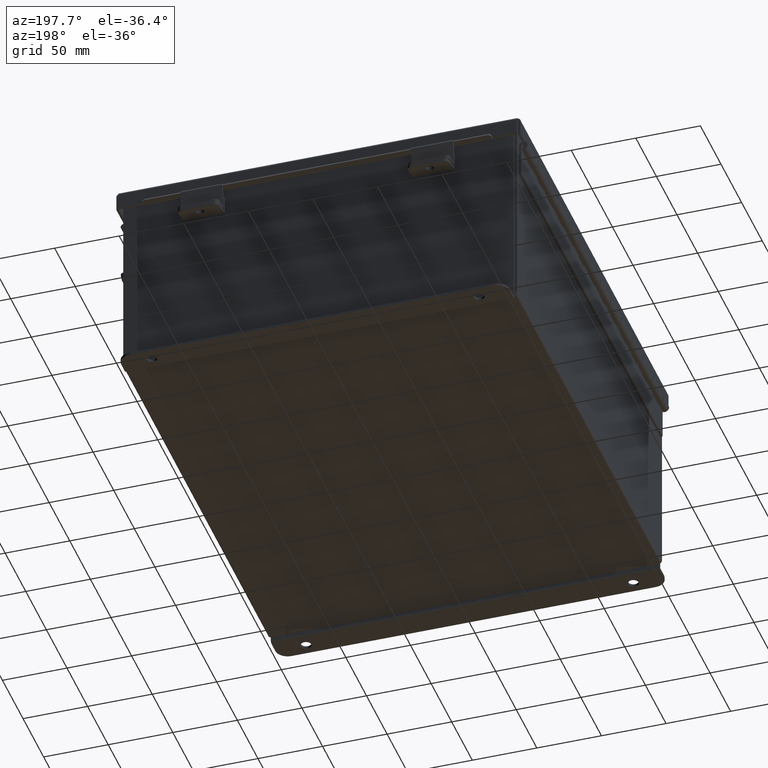
[diagram: clean part render]
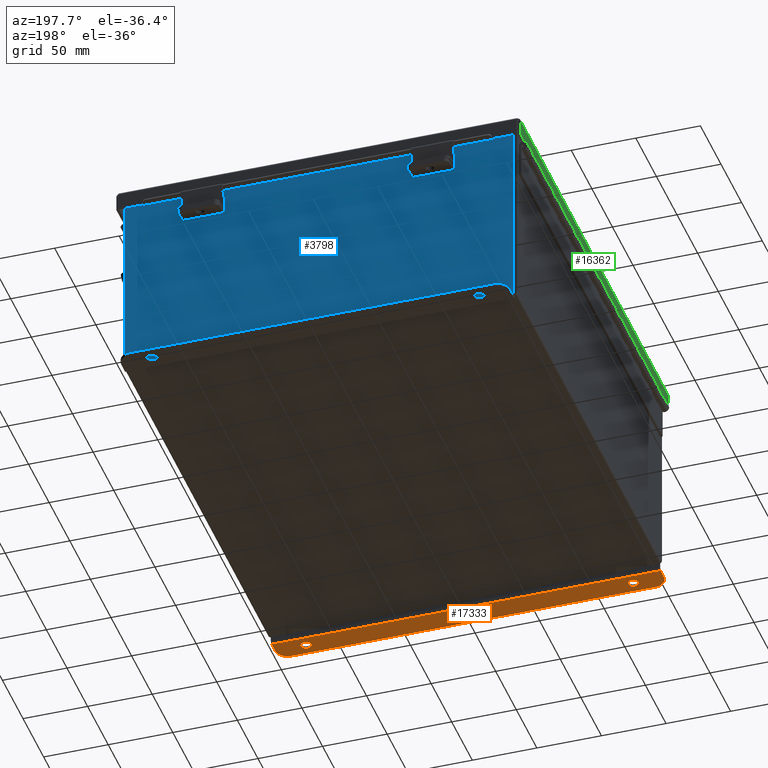
[diagram: same view with three faces highlighted in distinct colors, each labeled with its STEP entity id]
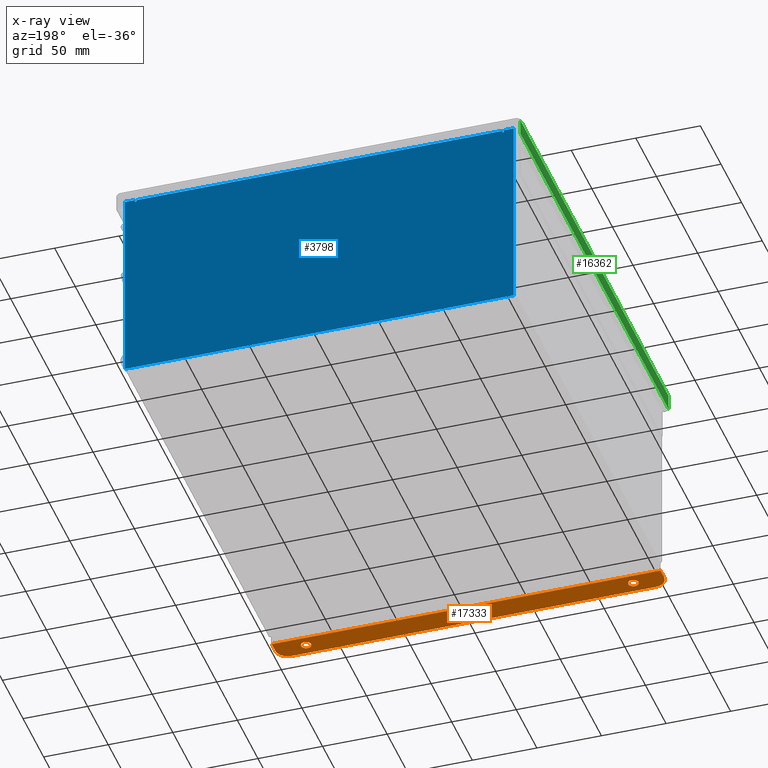
[diagram: x-ray of the same camera — body ghosted, the three highlighted faces saturated]
A machine part, auxiliary view with three faces highlighted in distinct colors.
The next image is the same camera in x-ray (body ghosted, the three faces saturated) — at least one of them is partly hidden behind the body in this view.
Their STEP definitions:

[orange] entity #17333 — the highlighted planar face has unit normal (0, -0, 1).
#193 = AXIS2_PLACEMENT_3D ( 'NONE', #13120, #4387, #14607 ) ;
#338 = AXIS2_PLACEMENT_3D ( 'NONE', #4331, #14545, #5784 ) ;
#808 = CARTESIAN_POINT ( 'NONE',  ( 5.550299999999999100, 0.7378000000000000100, -3.187000000000002900 ) ) ;
#871 = ORIENTED_EDGE ( 'NONE', *, *, #1375, .F. ) ;
#882 = LINE ( 'NONE', #15819, #7734 ) ;
#1101 = PLANE ( 'NONE',  #8274 ) ;
#1237 = VERTEX_POINT ( 'NONE', #14409 ) ;
#1257 = DIRECTION ( 'NONE',  ( -0.0000000000000000000, -3.702694488566362300E-015, -1.000000000000000000 ) ) ;
#1287 = VERTEX_POINT ( 'NONE', #11602 ) ;
#1375 = EDGE_CURVE ( 'NONE', #2573, #6247, #18643, .T. ) ;
#1559 = ORIENTED_EDGE ( 'NONE', *, *, #10273, .T. ) ;
#1796 = CARTESIAN_POINT ( 'NONE',  ( -4.987800000000000900, 0.3627999999999997300, -3.187000000000001200 ) ) ;
#1853 = VERTEX_POINT ( 'NONE', #808 ) ;
#2573 = VERTEX_POINT ( 'NONE', #12550 ) ;
#2581 = DIRECTION ( 'NONE',  ( -4.919856193148104900E-031, -1.000000000000000000, 3.702694488566362300E-015 ) ) ;
#2668 = VERTEX_POINT ( 'NONE', #4227 ) ;
#3035 = DIRECTION ( 'NONE',  ( 1.000000000000000000, 4.910036603141682400E-031, -0.0000000000000000000 ) ) ;
#3126 = CARTESIAN_POINT ( 'NONE',  ( 5.925299999999999100, 0.01300000000000010700, -3.187000000000004700 ) ) ;
#3251 = DIRECTION ( 'NONE',  ( 0.0000000000000000000, 1.000000000000000000, -3.502369222646487000E-015 ) ) ;
#3607 = CARTESIAN_POINT ( 'NONE',  ( 4.987799999999998200, 0.5187999999999999300, -3.187000000000001600 ) ) ;
#3808 = CIRCLE ( 'NONE', #13579, 0.1560000000000001900 ) ;
#4227 = CARTESIAN_POINT ( 'NONE',  ( -5.925300000000001800, 0.3627999999999920700, -3.187000000000005600 ) ) ;
#4250 = VERTEX_POINT ( 'NONE', #3607 ) ;
#4331 = CARTESIAN_POINT ( 'NONE',  ( 4.987799999999998200, 0.3627999999999997300, -3.187000000000001200 ) ) ;
#4387 = DIRECTION ( 'NONE',  ( -0.0000000000000000000, -3.702694488566362300E-015, -1.000000000000000000 ) ) ;
#5228 = ORIENTED_EDGE ( 'NONE', *, *, #7889, .F. ) ;
#5784 = DIRECTION ( 'NONE',  ( 0.0000000000000000000, 1.000000000000000000, -3.502369222646487000E-015 ) ) ;
#5937 = CIRCLE ( 'NONE', #16505, 0.1560000000000001900 ) ;
#5974 = CARTESIAN_POINT ( 'NONE',  ( 5.925299999999999100, 0.01300000000000120000, -3.187000000000004700 ) ) ;
#6247 = VERTEX_POINT ( 'NONE', #3126 ) ;
#6349 = CARTESIAN_POINT ( 'NONE',  ( -2.035385365534024800E-024, 0.7378000000000000100, -3.187000000000002900 ) ) ;
#6629 = DIRECTION ( 'NONE',  ( 0.0000000000000000000, -3.362274453740631800E-015, -1.000000000000000000 ) ) ;
#6952 = VECTOR ( 'NONE', #3035, 39.37007874015748100 ) ;
#7467 = FACE_BOUND ( 'NONE', #15431, .T. ) ;
#7504 = EDGE_CURVE ( 'NONE', #8632, #8294, #5937, .T. ) ;
#7538 = DIRECTION ( 'NONE',  ( 0.0000000000000000000, -3.362274453740631800E-015, -1.000000000000000000 ) ) ;
#7724 = DIRECTION ( 'NONE',  ( 4.919856193148104900E-031, 1.000000000000000000, -3.702694488566362300E-015 ) ) ;
#7734 = VECTOR ( 'NONE', #14352, 39.37007874015748100 ) ;
#7800 = DIRECTION ( 'NONE',  ( 1.000000000000000000, 4.910036603141682400E-031, 0.0000000000000000000 ) ) ;
#7889 = EDGE_CURVE ( 'NONE', #8294, #8632, #11634, .T. ) ;
#7930 = FACE_OUTER_BOUND ( 'NONE', #8169, .T. ) ;
#8169 = EDGE_LOOP ( 'NONE', ( #18694, #13023, #16628, #1559, #12194, #871 ) ) ;
#8274 = AXIS2_PLACEMENT_3D ( 'NONE', #14193, #11326, #2581 ) ;
#8294 = VERTEX_POINT ( 'NONE', #18668 ) ;
#8354 = EDGE_CURVE ( 'NONE', #1287, #6247, #882, .T. ) ;
#8433 = EDGE_CURVE ( 'NONE', #4250, #14114, #18042, .T. ) ;
#8632 = VERTEX_POINT ( 'NONE', #16459 ) ;
#8904 = AXIS2_PLACEMENT_3D ( 'NONE', #10000, #1257, #11473 ) ;
#9073 = EDGE_CURVE ( 'NONE', #2573, #2668, #18254, .T. ) ;
#9814 = EDGE_CURVE ( 'NONE', #14114, #4250, #3808, .T. ) ;
#10000 = CARTESIAN_POINT ( 'NONE',  ( 5.550299999999999100, 0.3628000000000008400, -3.187000000000005600 ) ) ;
#10100 = CARTESIAN_POINT ( 'NONE',  ( -5.925300000000001800, -1.966930555438269700E-014, -3.187000000000000300 ) ) ;
#10273 = EDGE_CURVE ( 'NONE', #1853, #1287, #15891, .T. ) ;
#10339 = LINE ( 'NONE', #6349, #17672 ) ;
#11326 = DIRECTION ( 'NONE',  ( 0.0000000000000000000, 3.702694488566362300E-015, 1.000000000000000000 ) ) ;
#11473 = DIRECTION ( 'NONE',  ( 0.0000000000000000000, -1.000000000000000000, 4.370956789862820400E-015 ) ) ;
#11602 = CARTESIAN_POINT ( 'NONE',  ( 5.925299999999999100, 0.3628000000000008400, -3.187000000000001200 ) ) ;
#11634 = CIRCLE ( 'NONE', #12823, 0.1560000000000001900 ) ;
#12005 = DIRECTION ( 'NONE',  ( 0.0000000000000000000, -3.362274453740631800E-015, -1.000000000000000000 ) ) ;
#12185 = EDGE_CURVE ( 'NONE', #1237, #1853, #10339, .T. ) ;
#12194 = ORIENTED_EDGE ( 'NONE', *, *, #8354, .T. ) ;
#12300 = ORIENTED_EDGE ( 'NONE', *, *, #7504, .F. ) ;
#12550 = CARTESIAN_POINT ( 'NONE',  ( -5.925300000000000000, 0.01299999999999245900, -3.187000000000000300 ) ) ;
#12823 = AXIS2_PLACEMENT_3D ( 'NONE', #1796, #12005, #3251 ) ;
#13023 = ORIENTED_EDGE ( 'NONE', *, *, #16679, .T. ) ;
#13120 = CARTESIAN_POINT ( 'NONE',  ( -5.550299999999999100, 0.3627999999999997300, -3.187000000000005600 ) ) ;
#13202 = CIRCLE ( 'NONE', #193, 0.3750000000000000600 ) ;
#13537 = EDGE_LOOP ( 'NONE', ( #14456, #15061 ) ) ;
#13579 = AXIS2_PLACEMENT_3D ( 'NONE', #15385, #6629, #16861 ) ;
#14114 = VERTEX_POINT ( 'NONE', #14243 ) ;
#14193 = CARTESIAN_POINT ( 'NONE',  ( 0.0000000000000000000, -1.092739197465705300E-014, -3.187000000000000700 ) ) ;
#14243 = CARTESIAN_POINT ( 'NONE',  ( 4.987800000000007100, 0.2067999999999996000, -3.187000000000000700 ) ) ;
#14332 = VECTOR ( 'NONE', #7724, 39.37007874015748100 ) ;
#14352 = DIRECTION ( 'NONE',  ( -4.919856193148104900E-031, -1.000000000000000000, 3.702694488566362300E-015 ) ) ;
#14409 = CARTESIAN_POINT ( 'NONE',  ( -5.550299999999999100, 0.7377999999999912400, -3.187000000000002900 ) ) ;
#14456 = ORIENTED_EDGE ( 'NONE', *, *, #8433, .F. ) ;
#14545 = DIRECTION ( 'NONE',  ( 0.0000000000000000000, -3.362274453740631800E-015, -1.000000000000000000 ) ) ;
#14607 = DIRECTION ( 'NONE',  ( 0.0000000000000000000, -1.000000000000000000, 4.370956789862820400E-015 ) ) ;
#15061 = ORIENTED_EDGE ( 'NONE', *, *, #9814, .F. ) ;
#15270 = FACE_BOUND ( 'NONE', #13537, .T. ) ;
#15385 = CARTESIAN_POINT ( 'NONE',  ( 4.987799999999998200, 0.3627999999999997300, -3.187000000000001200 ) ) ;
#15431 = EDGE_LOOP ( 'NONE', ( #12300, #5228 ) ) ;
#15819 = CARTESIAN_POINT ( 'NONE',  ( 5.925299999999999100, -1.092739197465705300E-014, -3.187000000000004700 ) ) ;
#15891 = CIRCLE ( 'NONE', #8904, 0.3750000000000000600 ) ;
#16301 = CARTESIAN_POINT ( 'NONE',  ( -4.987800000000000900, 0.3627999999999997300, -3.187000000000001200 ) ) ;
#16459 = CARTESIAN_POINT ( 'NONE',  ( -4.987800000000000900, 0.5187999999999999300, -3.187000000000001600 ) ) ;
#16505 = AXIS2_PLACEMENT_3D ( 'NONE', #16301, #7538, #17789 ) ;
#16628 = ORIENTED_EDGE ( 'NONE', *, *, #12185, .T. ) ;
#16679 = EDGE_CURVE ( 'NONE', #2668, #1237, #13202, .T. ) ;
#16861 = DIRECTION ( 'NONE',  ( 0.0000000000000000000, 1.000000000000000000, -3.502369222646487000E-015 ) ) ;
#17333 = ADVANCED_FACE ( 'NONE', ( #7467, #15270, #7930 ), #1101, .F. ) ;
#17672 = VECTOR ( 'NONE', #7800, 39.37007874015748100 ) ;
#17789 = DIRECTION ( 'NONE',  ( 0.0000000000000000000, 1.000000000000000000, -3.502369222646487000E-015 ) ) ;
#18042 = CIRCLE ( 'NONE', #338, 0.1560000000000001900 ) ;
#18254 = LINE ( 'NONE', #10100, #14332 ) ;
#18643 = LINE ( 'NONE', #5974, #6952 ) ;
#18668 = CARTESIAN_POINT ( 'NONE',  ( -4.987799999999992000, 0.2067999999999996000, -3.187000000000000700 ) ) ;
#18694 = ORIENTED_EDGE ( 'NONE', *, *, #9073, .T. ) ;

[blue] entity #3798 — the highlighted planar face has unit normal (0, -1, 0).
#420 = CARTESIAN_POINT ( 'NONE',  ( -5.619650000000000000, 0.0000000000000000000, 0.0000000000000000000 ) ) ;
#514 = AXIS2_PLACEMENT_3D ( 'NONE', #12495, #3744, #13946 ) ;
#763 = ORIENTED_EDGE ( 'NONE', *, *, #988, .T. ) ;
#988 = EDGE_CURVE ( 'NONE', #2553, #3763, #12464, .T. ) ;
#1054 = VERTEX_POINT ( 'NONE', #3764 ) ;
#1166 = DIRECTION ( 'NONE',  ( 0.0000000000000000000, -0.0000000000000000000, -1.000000000000000000 ) ) ;
#1413 = DIRECTION ( 'NONE',  ( 1.000000000000000000, 0.0000000000000000000, 0.0000000000000000000 ) ) ;
#1656 = DIRECTION ( 'NONE',  ( 1.000000000000000000, 0.0000000000000000000, 0.0000000000000000000 ) ) ;
#2333 = DIRECTION ( 'NONE',  ( 0.0000000000000000000, 0.0000000000000000000, -1.000000000000000000 ) ) ;
#2553 = VERTEX_POINT ( 'NONE', #5264 ) ;
#2660 = EDGE_LOOP ( 'NONE', ( #13603, #16737, #9439, #13214, #15163, #16209, #3087, #16712, #13418, #12981, #763, #12319 ) ) ;
#2873 = VERTEX_POINT ( 'NONE', #3406 ) ;
#3087 = ORIENTED_EDGE ( 'NONE', *, *, #10326, .F. ) ;
#3318 = VECTOR ( 'NONE', #4268, 39.37007874015748100 ) ;
#3406 = CARTESIAN_POINT ( 'NONE',  ( 5.619649999999998300, 0.0000000000000000000, 2.874949999999998300 ) ) ;
#3490 = DIRECTION ( 'NONE',  ( -0.0000000000000000000, 1.000000000000000000, -0.0000000000000000000 ) ) ;
#3616 = EDGE_CURVE ( 'NONE', #2873, #18536, #4394, .T. ) ;
#3744 = DIRECTION ( 'NONE',  ( -0.0000000000000000000, 1.000000000000000000, -0.0000000000000000000 ) ) ;
#3763 = VERTEX_POINT ( 'NONE', #15627 ) ;
#3764 = CARTESIAN_POINT ( 'NONE',  ( 5.925299999999999100, 0.0000000000000000000, 2.925299999999999600 ) ) ;
#3786 = LINE ( 'NONE', #8642, #3318 ) ;
#3798 = ADVANCED_FACE ( 'NONE', ( #12829 ), #8426, .F. ) ;
#3915 = VERTEX_POINT ( 'NONE', #13034 ) ;
#4109 = VECTOR ( 'NONE', #16816, 39.37007874015748100 ) ;
#4122 = CARTESIAN_POINT ( 'NONE',  ( -5.925300000000001800, 0.0000000000000000000, 2.925299999999999600 ) ) ;
#4258 = AXIS2_PLACEMENT_3D ( 'NONE', #12233, #3490, #13693 ) ;
#4268 = DIRECTION ( 'NONE',  ( -2.170286390199955400E-014, 0.0000000000000000000, -1.000000000000000000 ) ) ;
#4355 = LINE ( 'NONE', #18832, #15557 ) ;
#4394 = CIRCLE ( 'NONE', #514, 0.01867500000000003900 ) ;
#4685 = VECTOR ( 'NONE', #14338, 39.37007874015748100 ) ;
#4814 = CARTESIAN_POINT ( 'NONE',  ( 5.925299999999999100, 0.0000000000000000000, -3.099299999999999900 ) ) ;
#5051 = EDGE_CURVE ( 'NONE', #18536, #8036, #13478, .T. ) ;
#5098 = CARTESIAN_POINT ( 'NONE',  ( 5.582299999999999200, 0.0000000000000000000, 2.874949999999998300 ) ) ;
#5264 = CARTESIAN_POINT ( 'NONE',  ( -5.925300000000000000, 0.0000000000000000000, -3.099299999999999900 ) ) ;
#5713 = VECTOR ( 'NONE', #17337, 39.37007874015748100 ) ;
#5755 = CARTESIAN_POINT ( 'NONE',  ( -5.925300000000001800, 0.0000000000000000000, 2.925299999999999600 ) ) ;
#6256 = CARTESIAN_POINT ( 'NONE',  ( 5.619650000000000000, 0.0000000000000000000, 2.925299999999999600 ) ) ;
#6387 = CARTESIAN_POINT ( 'NONE',  ( 5.582299999999999200, 0.0000000000000000000, 2.912299999999999200 ) ) ;
#7077 = EDGE_CURVE ( 'NONE', #10798, #13394, #15785, .T. ) ;
#7125 = LINE ( 'NONE', #5755, #10563 ) ;
#7337 = EDGE_CURVE ( 'NONE', #2553, #11152, #4355, .T. ) ;
#7714 = VECTOR ( 'NONE', #2333, 39.37007874015748100 ) ;
#7894 = VECTOR ( 'NONE', #10662, 39.37007874015748100 ) ;
#8036 = VERTEX_POINT ( 'NONE', #6387 ) ;
#8426 = PLANE ( 'NONE',  #10314 ) ;
#8478 = CARTESIAN_POINT ( 'NONE',  ( 5.582299999999999200, 0.0000000000000000000, 0.0000000000000000000 ) ) ;
#8642 = CARTESIAN_POINT ( 'NONE',  ( 5.619649999999937000, 0.0000000000000000000, -1.218404205174261500E-013 ) ) ;
#8777 = LINE ( 'NONE', #11878, #16129 ) ;
#8845 = EDGE_CURVE ( 'NONE', #1054, #11152, #15044, .T. ) ;
#9076 = VERTEX_POINT ( 'NONE', #6256 ) ;
#9422 = EDGE_CURVE ( 'NONE', #3915, #8036, #18472, .T. ) ;
#9439 = ORIENTED_EDGE ( 'NONE', *, *, #15791, .F. ) ;
#9507 = CARTESIAN_POINT ( 'NONE',  ( -5.582300000000000000, 0.0000000000000000000, 0.0000000000000000000 ) ) ;
#9733 = VECTOR ( 'NONE', #17248, 39.37007874015748100 ) ;
#9905 = DIRECTION ( 'NONE',  ( 0.0000000000000000000, -1.000000000000000000, 0.0000000000000000000 ) ) ;
#10314 = AXIS2_PLACEMENT_3D ( 'NONE', #18711, #9905, #1166 ) ;
#10326 = EDGE_CURVE ( 'NONE', #9076, #2873, #3786, .T. ) ;
#10563 = VECTOR ( 'NONE', #1413, 39.37007874015748100 ) ;
#10662 = DIRECTION ( 'NONE',  ( 0.0000000000000000000, 0.0000000000000000000, 1.000000000000000000 ) ) ;
#10798 = VERTEX_POINT ( 'NONE', #17031 ) ;
#11152 = VERTEX_POINT ( 'NONE', #4814 ) ;
#11328 = LINE ( 'NONE', #420, #7894 ) ;
#11878 = CARTESIAN_POINT ( 'NONE',  ( -5.925300000000001800, 0.0000000000000000000, 2.925299999999999600 ) ) ;
#12233 = CARTESIAN_POINT ( 'NONE',  ( -5.600975000000000000, 0.0000000000000000000, 2.874949999999998300 ) ) ;
#12319 = ORIENTED_EDGE ( 'NONE', *, *, #18290, .T. ) ;
#12417 = EDGE_CURVE ( 'NONE', #9076, #1054, #7125, .T. ) ;
#12464 = LINE ( 'NONE', #4122, #4685 ) ;
#12495 = CARTESIAN_POINT ( 'NONE',  ( 5.600974999999998300, 0.0000000000000000000, 2.874949999999998300 ) ) ;
#12565 = CARTESIAN_POINT ( 'NONE',  ( 5.925299999999999100, 0.0000000000000000000, 2.925299999999999600 ) ) ;
#12829 = FACE_OUTER_BOUND ( 'NONE', #2660, .T. ) ;
#12973 = DIRECTION ( 'NONE',  ( 1.000000000000000000, -0.0000000000000000000, -0.0000000000000000000 ) ) ;
#12981 = ORIENTED_EDGE ( 'NONE', *, *, #7337, .F. ) ;
#13034 = CARTESIAN_POINT ( 'NONE',  ( -5.582300000000000000, 2.185478394931410600E-015, 2.912299999999999200 ) ) ;
#13214 = ORIENTED_EDGE ( 'NONE', *, *, #9422, .T. ) ;
#13394 = VERTEX_POINT ( 'NONE', #13800 ) ;
#13418 = ORIENTED_EDGE ( 'NONE', *, *, #8845, .T. ) ;
#13478 = LINE ( 'NONE', #8478, #5713 ) ;
#13603 = ORIENTED_EDGE ( 'NONE', *, *, #18391, .F. ) ;
#13693 = DIRECTION ( 'NONE',  ( 0.0000000000000000000, 0.0000000000000000000, -1.000000000000000000 ) ) ;
#13800 = CARTESIAN_POINT ( 'NONE',  ( -5.619650000000000000, 0.0000000000000000000, 2.874949999999998300 ) ) ;
#13946 = DIRECTION ( 'NONE',  ( 0.0000000000000000000, 0.0000000000000000000, -1.000000000000000000 ) ) ;
#14338 = DIRECTION ( 'NONE',  ( -0.0000000000000000000, -0.0000000000000000000, 1.000000000000000000 ) ) ;
#15044 = LINE ( 'NONE', #12565, #7714 ) ;
#15163 = ORIENTED_EDGE ( 'NONE', *, *, #5051, .F. ) ;
#15546 = VERTEX_POINT ( 'NONE', #17531 ) ;
#15557 = VECTOR ( 'NONE', #12973, 39.37007874015748100 ) ;
#15627 = CARTESIAN_POINT ( 'NONE',  ( -5.925300000000001800, 0.0000000000000000000, 2.925299999999999600 ) ) ;
#15766 = LINE ( 'NONE', #9507, #4109 ) ;
#15770 = CARTESIAN_POINT ( 'NONE',  ( -5.582300000000000900, 2.185478394931410600E-015, 2.912299999999999200 ) ) ;
#15785 = CIRCLE ( 'NONE', #4258, 0.01867500000000003900 ) ;
#15791 = EDGE_CURVE ( 'NONE', #3915, #10798, #15766, .T. ) ;
#16129 = VECTOR ( 'NONE', #1656, 39.37007874015748100 ) ;
#16209 = ORIENTED_EDGE ( 'NONE', *, *, #3616, .F. ) ;
#16712 = ORIENTED_EDGE ( 'NONE', *, *, #12417, .T. ) ;
#16737 = ORIENTED_EDGE ( 'NONE', *, *, #7077, .F. ) ;
#16816 = DIRECTION ( 'NONE',  ( 0.0000000000000000000, 0.0000000000000000000, -1.000000000000000000 ) ) ;
#17031 = CARTESIAN_POINT ( 'NONE',  ( -5.582300000000000000, 0.0000000000000000000, 2.874949999999998300 ) ) ;
#17248 = DIRECTION ( 'NONE',  ( 1.000000000000000000, 0.0000000000000000000, 0.0000000000000000000 ) ) ;
#17337 = DIRECTION ( 'NONE',  ( 0.0000000000000000000, 0.0000000000000000000, 1.000000000000000000 ) ) ;
#17531 = CARTESIAN_POINT ( 'NONE',  ( -5.619650000000000000, 0.0000000000000000000, 2.925299999999999600 ) ) ;
#18290 = EDGE_CURVE ( 'NONE', #3763, #15546, #8777, .T. ) ;
#18391 = EDGE_CURVE ( 'NONE', #13394, #15546, #11328, .T. ) ;
#18472 = LINE ( 'NONE', #15770, #9733 ) ;
#18536 = VERTEX_POINT ( 'NONE', #5098 ) ;
#18711 = CARTESIAN_POINT ( 'NONE',  ( 0.0000000000000000000, 0.0000000000000000000, 0.0000000000000000000 ) ) ;
#18832 = CARTESIAN_POINT ( 'NONE',  ( -5.925300000000001800, 0.0000000000000000000, -3.099299999999999900 ) ) ;

[green] entity #16362 — the highlighted planar face has unit normal (1, 0, 0).
#334 = CARTESIAN_POINT ( 'NONE',  ( 6.156250000000002700, 7.074478932188133000, 0.4872999999999997300 ) ) ;
#546 = CARTESIAN_POINT ( 'NONE',  ( 6.156250000000000000, -1.140647937826210200E-017, -2.787081030857980700E-014 ) ) ;
#733 = EDGE_CURVE ( 'NONE', #16899, #4919, #12692, .T. ) ;
#1341 = VERTEX_POINT ( 'NONE', #1517 ) ;
#1517 = CARTESIAN_POINT ( 'NONE',  ( 6.156250000000000000, 7.074478932188133800, 0.01300000000000086700 ) ) ;
#1956 = DIRECTION ( 'NONE',  ( -3.424136966969388400E-031, -1.000000000000000000, -7.634859021594445400E-017 ) ) ;
#2038 = DIRECTION ( 'NONE',  ( 4.484872552701437800E-015, 0.0000000000000000000, 1.000000000000000000 ) ) ;
#2677 = CARTESIAN_POINT ( 'NONE',  ( 6.156250000000000000, -7.074478932188137400, -3.350199796867980800E-016 ) ) ;
#3364 = CARTESIAN_POINT ( 'NONE',  ( 6.156250000000000000, -7.156250000000002700, 0.01299999999999978100 ) ) ;
#3389 = ORIENTED_EDGE ( 'NONE', *, *, #733, .T. ) ;
#3510 = CARTESIAN_POINT ( 'NONE',  ( 6.156250000000000000, -7.074478932188138300, 0.01299999999999974100 ) ) ;
#4497 = AXIS2_PLACEMENT_3D ( 'NONE', #546, #10783, #2038 ) ;
#4919 = VERTEX_POINT ( 'NONE', #11196 ) ;
#6607 = FACE_OUTER_BOUND ( 'NONE', #17588, .T. ) ;
#7234 = DIRECTION ( 'NONE',  ( 4.484872552701437800E-015, 0.0000000000000000000, 1.000000000000000000 ) ) ;
#8641 = LINE ( 'NONE', #2677, #15987 ) ;
#9413 = CARTESIAN_POINT ( 'NONE',  ( 6.156250000000002700, -1.140647937826210200E-017, 0.4872999999999997300 ) ) ;
#9710 = VERTEX_POINT ( 'NONE', #3510 ) ;
#9851 = ORIENTED_EDGE ( 'NONE', *, *, #16016, .F. ) ;
#10729 = PLANE ( 'NONE',  #4497 ) ;
#10783 = DIRECTION ( 'NONE',  ( -1.000000000000000000, 0.0000000000000000000, 4.484872552701437800E-015 ) ) ;
#11008 = EDGE_CURVE ( 'NONE', #1341, #16899, #12216, .T. ) ;
#11196 = CARTESIAN_POINT ( 'NONE',  ( 6.156250000000002700, -7.074478932188137400, 0.4872999999999997300 ) ) ;
#11428 = DIRECTION ( 'NONE',  ( 4.484872552701437800E-015, -0.0000000000000000000, 1.000000000000000000 ) ) ;
#11844 = ORIENTED_EDGE ( 'NONE', *, *, #18963, .F. ) ;
#12216 = LINE ( 'NONE', #14525, #13108 ) ;
#12692 = LINE ( 'NONE', #9413, #16119 ) ;
#13108 = VECTOR ( 'NONE', #7234, 39.37007874015748100 ) ;
#14525 = CARTESIAN_POINT ( 'NONE',  ( 6.156250000000000000, 7.074478932188133800, -2.787081030857980700E-014 ) ) ;
#14704 = ORIENTED_EDGE ( 'NONE', *, *, #11008, .T. ) ;
#15264 = DIRECTION ( 'NONE',  ( 0.0000000000000000000, -1.000000000000000000, 0.0000000000000000000 ) ) ;
#15987 = VECTOR ( 'NONE', #11428, 39.37007874015748100 ) ;
#16016 = EDGE_CURVE ( 'NONE', #9710, #4919, #8641, .T. ) ;
#16119 = VECTOR ( 'NONE', #15264, 39.37007874015748100 ) ;
#16362 = ADVANCED_FACE ( 'NONE', ( #6607 ), #10729, .F. ) ;
#16804 = VECTOR ( 'NONE', #1956, 39.37007874015748100 ) ;
#16899 = VERTEX_POINT ( 'NONE', #334 ) ;
#17264 = LINE ( 'NONE', #3364, #16804 ) ;
#17588 = EDGE_LOOP ( 'NONE', ( #11844, #14704, #3389, #9851 ) ) ;
#18963 = EDGE_CURVE ( 'NONE', #1341, #9710, #17264, .T. ) ;